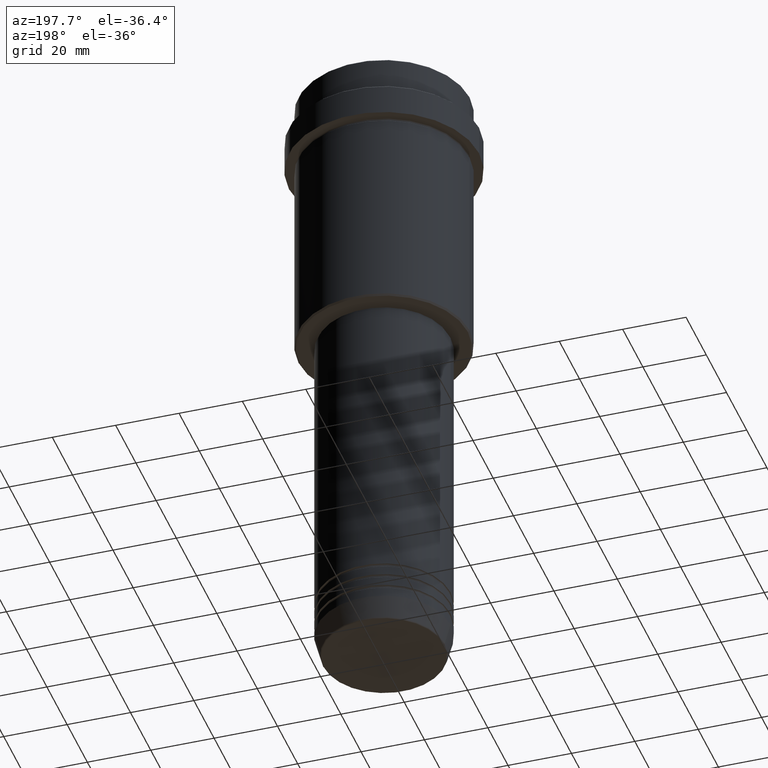
[diagram: clean part render]
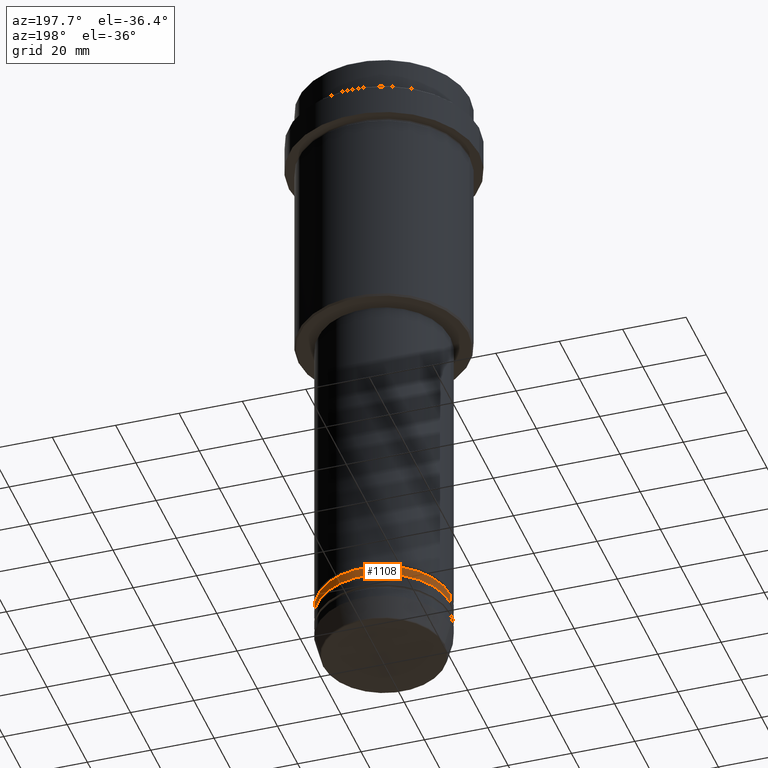
[diagram: same view with one face highlighted and labeled with its STEP entity id]
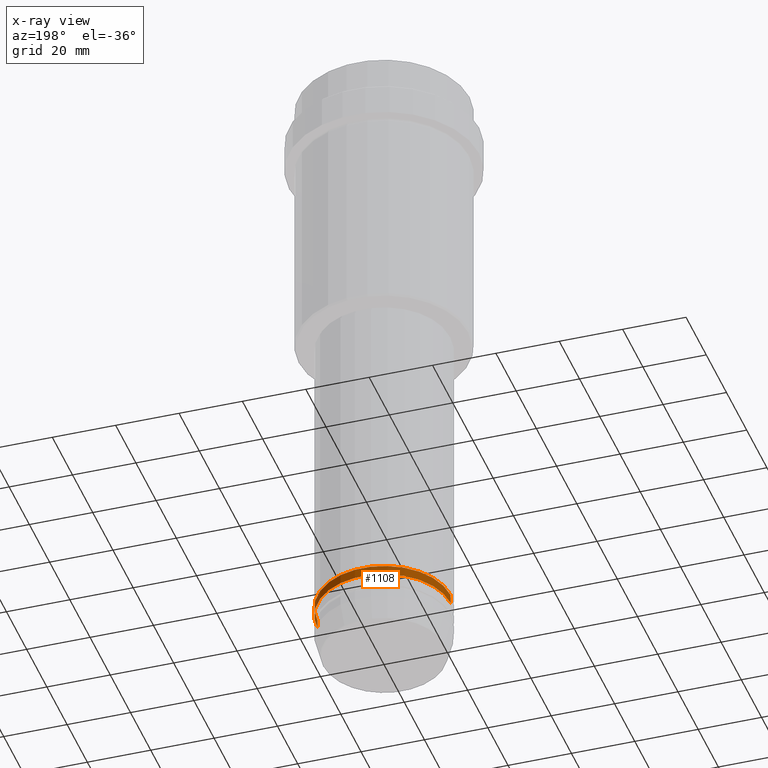
[diagram: x-ray of the same camera — body ghosted, the highlighted face saturated]
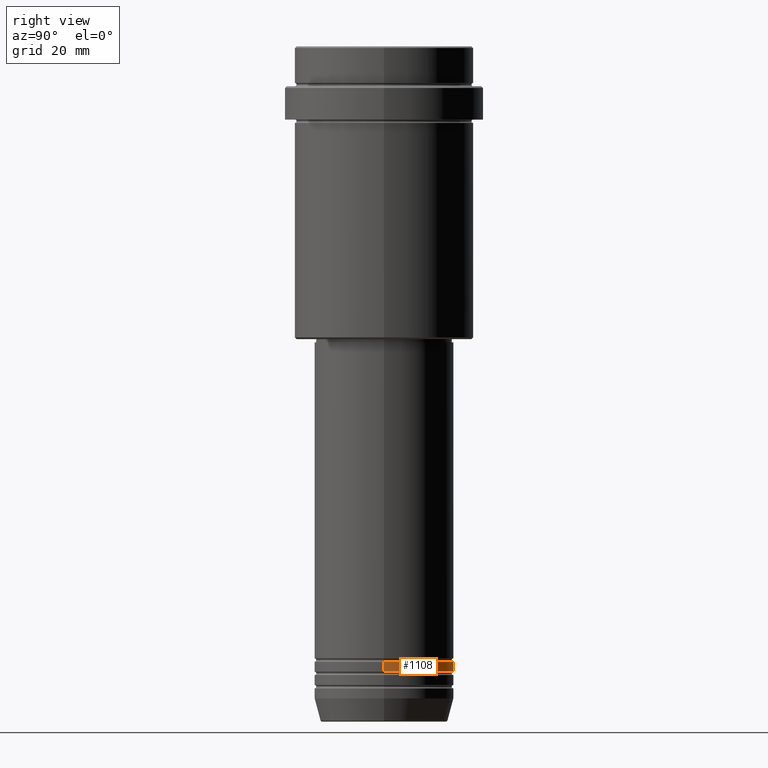
[diagram: same view with one face highlighted and labeled with its STEP entity id]
A machine part, auxiliary view. The second image highlights one B-rep face of the part: STEP entity #1108.
The next image is the same camera in x-ray: the body ghosted, the highlighted face saturated — about 0% of this face is hidden behind the body in this view.
A second angle (right view) of the same face is appended — the face is thin or edge-on in the first view.
In plain terms, the highlighted cylindrical surface (partial cylindrical patch) has radius 21 mm, axis along (-0, -0, 1).
Its self-contained STEP definition (entity closure, byte-faithful):
#13 = AXIS2_PLACEMENT_3D ( 'NONE', #523, #114, #96 ) ;
#24 = CARTESIAN_POINT ( 'NONE',  ( 21.00000000000000000, 0.000000000000000000, -184.9999999999998863 ) ) ;
#75 = DIRECTION ( 'NONE',  ( 1.000000000000000000, 0.000000000000000000, 0.000000000000000000 ) ) ;
#96 = DIRECTION ( 'NONE',  ( 1.000000000000000000, 0.000000000000000000, 0.000000000000000000 ) ) ;
#114 = DIRECTION ( 'NONE',  ( -0.000000000000000000, -0.000000000000000000, 1.000000000000000000 ) ) ;
#130 = CARTESIAN_POINT ( 'NONE',  ( 0.000000000000000000, 0.000000000000000000, 0.000000000000000000 ) ) ;
#148 = VECTOR ( 'NONE', #1063, 1000.000000000000000 ) ;
#193 = VECTOR ( 'NONE', #643, 1000.000000000000000 ) ;
#194 = CARTESIAN_POINT ( 'NONE',  ( 21.00000000000000000, 0.000000000000000000, 0.000000000000000000 ) ) ;
#209 = CARTESIAN_POINT ( 'NONE',  ( -21.00000000000000000, 2.571758278209441661E-15, -187.9999999999998863 ) ) ;
#244 = DIRECTION ( 'NONE',  ( -0.000000000000000000, -0.000000000000000000, 1.000000000000000000 ) ) ;
#257 = CIRCLE ( 'NONE', #994, 21.00000000000000000 ) ;
#295 = CARTESIAN_POINT ( 'NONE',  ( -21.00000000000000000, 2.571758278209441661E-15, 0.000000000000000000 ) ) ;
#357 = EDGE_CURVE ( 'NONE', #891, #1110, #411, .T. ) ;
#373 = EDGE_CURVE ( 'NONE', #1110, #478, #257, .T. ) ;
#377 = CIRCLE ( 'NONE', #13, 21.00000000000000000 ) ;
#411 = LINE ( 'NONE', #194, #193 ) ;
#478 = VERTEX_POINT ( 'NONE', #585 ) ;
#517 = LINE ( 'NONE', #295, #148 ) ;
#523 = CARTESIAN_POINT ( 'NONE',  ( 0.000000000000000000, 0.000000000000000000, -187.9999999999998863 ) ) ;
#585 = CARTESIAN_POINT ( 'NONE',  ( -21.00000000000000000, 2.571758278209441661E-15, -184.9999999999998863 ) ) ;
#627 = EDGE_LOOP ( 'NONE', ( #985, #946, #829, #854 ) ) ;
#643 = DIRECTION ( 'NONE',  ( -0.000000000000000000, -0.000000000000000000, 1.000000000000000000 ) ) ;
#737 = CARTESIAN_POINT ( 'NONE',  ( 0.000000000000000000, 0.000000000000000000, -184.9999999999998863 ) ) ;
#753 = AXIS2_PLACEMENT_3D ( 'NONE', #130, #244, #1002 ) ;
#829 = ORIENTED_EDGE ( 'NONE', *, *, #373, .F. ) ;
#854 = ORIENTED_EDGE ( 'NONE', *, *, #357, .F. ) ;
#876 = CARTESIAN_POINT ( 'NONE',  ( 21.00000000000000000, 0.000000000000000000, -187.9999999999998863 ) ) ;
#891 = VERTEX_POINT ( 'NONE', #876 ) ;
#946 = ORIENTED_EDGE ( 'NONE', *, *, #1282, .T. ) ;
#955 = VERTEX_POINT ( 'NONE', #209 ) ;
#985 = ORIENTED_EDGE ( 'NONE', *, *, #999, .T. ) ;
#994 = AXIS2_PLACEMENT_3D ( 'NONE', #737, #1275, #75 ) ;
#999 = EDGE_CURVE ( 'NONE', #891, #955, #377, .T. ) ;
#1002 = DIRECTION ( 'NONE',  ( 1.000000000000000000, 0.000000000000000000, 0.000000000000000000 ) ) ;
#1006 = CYLINDRICAL_SURFACE ( 'NONE', #753, 21.00000000000000000 ) ;
#1063 = DIRECTION ( 'NONE',  ( -0.000000000000000000, -0.000000000000000000, 1.000000000000000000 ) ) ;
#1105 = FACE_OUTER_BOUND ( 'NONE', #627, .T. ) ;
#1108 = ADVANCED_FACE ( 'NONE', ( #1105 ), #1006, .T. ) ;
#1110 = VERTEX_POINT ( 'NONE', #24 ) ;
#1275 = DIRECTION ( 'NONE',  ( -0.000000000000000000, -0.000000000000000000, 1.000000000000000000 ) ) ;
#1282 = EDGE_CURVE ( 'NONE', #955, #478, #517, .T. ) ;